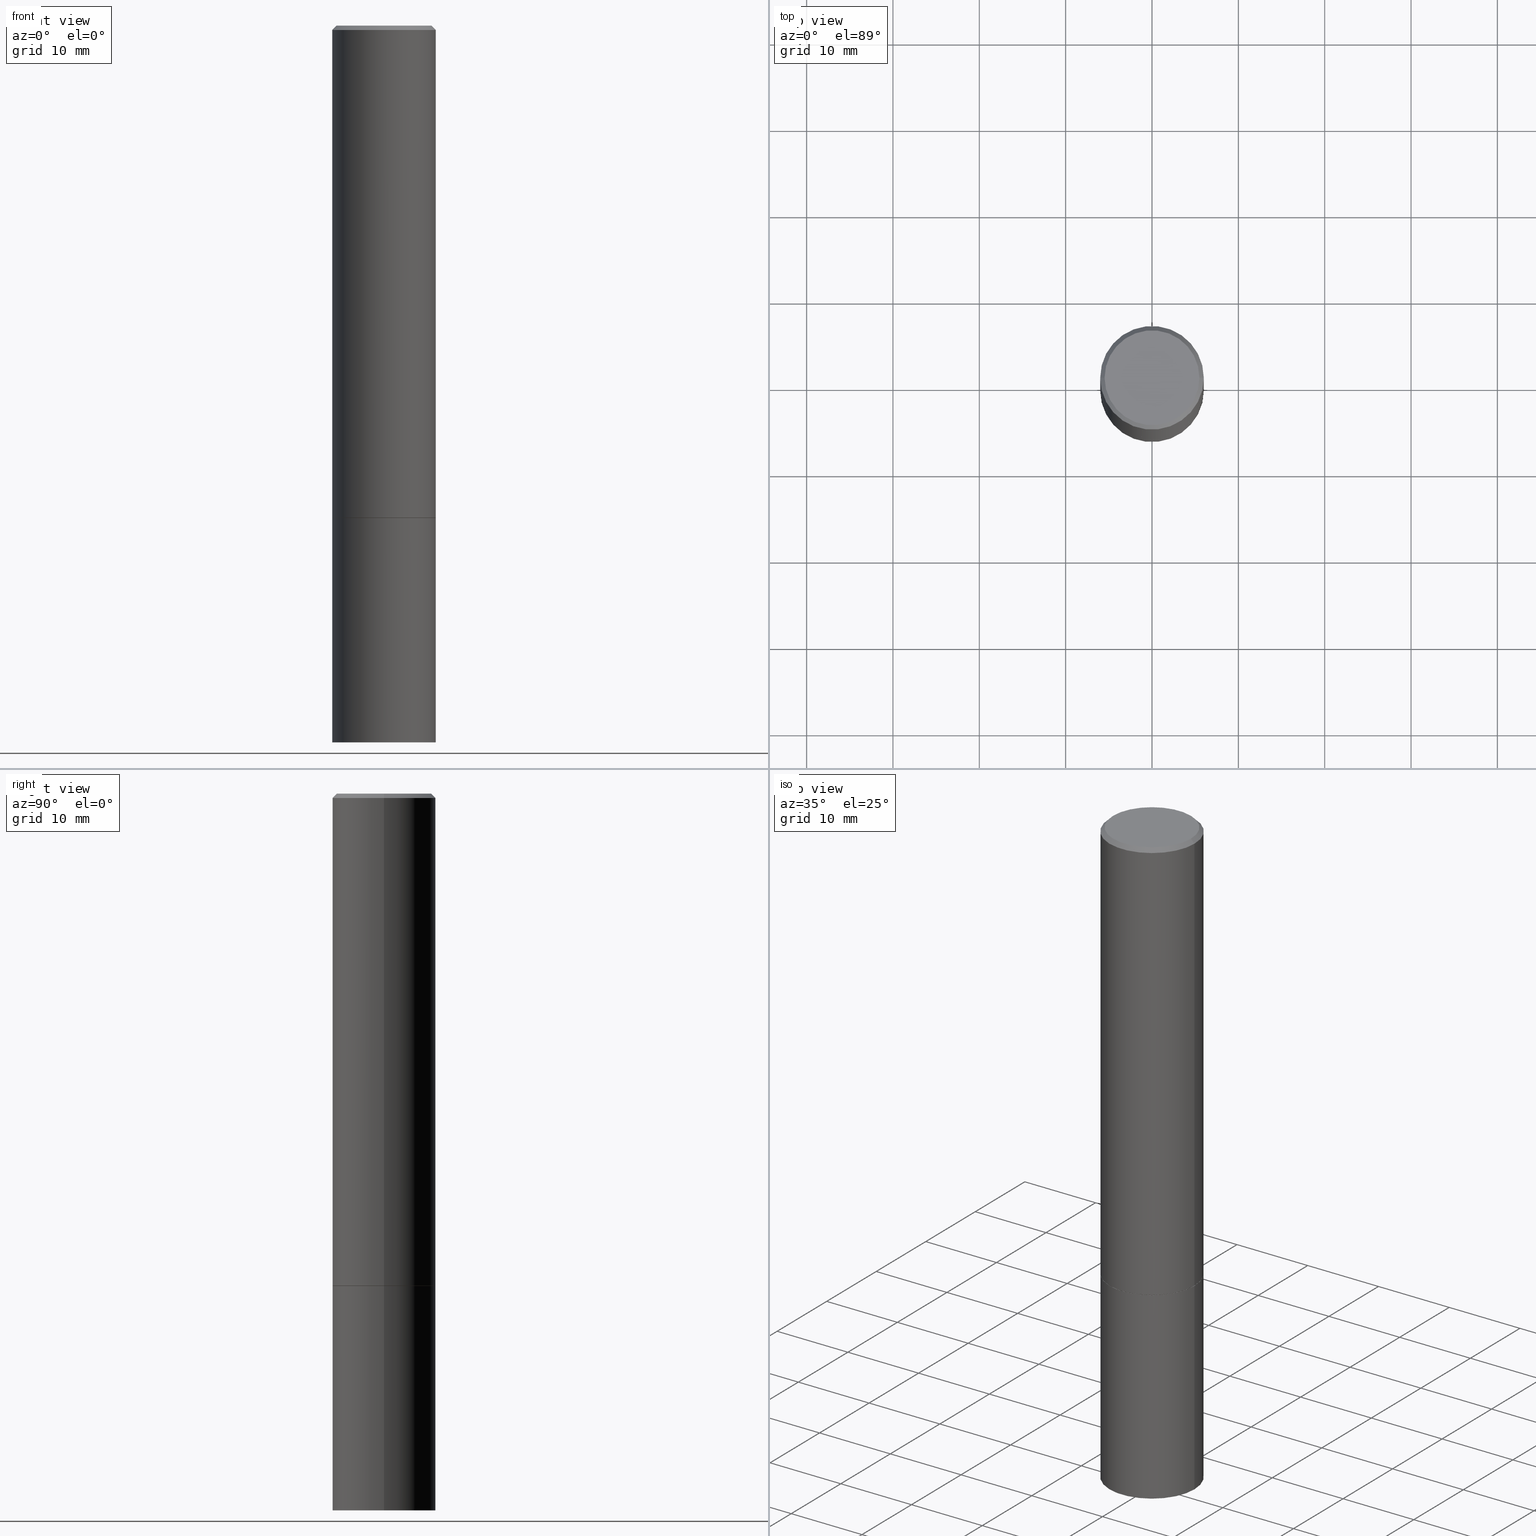
[diagram: canonical four-view strip — front | top / right | iso, engineering-drawing reading convention]
A machine part, canonical four-view strip (front | top / right | iso — engineering-drawing reading convention). The complete STEP part file that produces these views, byte-faithful:
ISO-10303-21;
HEADER;
FILE_DESCRIPTION (( 'STEP AP203' ),
    '1' );
FILE_NAME ('44708.STEP',
    '2024-02-28T07:36:03',
    ( '' ),
    ( '' ),
    'SwSTEP 2.0',
    'SolidWorks 2023',
    '' );
FILE_SCHEMA (( 'CONFIG_CONTROL_DESIGN' ));
ENDSEC;

DATA;
#1 = PLANE ( 'NONE',  #151 ) ;
#2 = ORIENTED_EDGE ( 'NONE', *, *, #78, .F. ) ;
#3 = DIRECTION ( 'NONE',  ( 1.000000000000000000, -6.982962677686264344E-15, 0.000000000000000000 ) ) ;
#4 = ORIENTED_EDGE ( 'NONE', *, *, #291, .T. ) ;
#5 = LINE ( 'NONE', #347, #148 ) ;
#6 = APPLICATION_PROTOCOL_DEFINITION ( 'international standard', 'config_control_design', 1994, #83 ) ;
#7 = DIRECTION ( 'NONE',  ( 1.000000000000000000, -6.982962677686266711E-15, 4.876176775795935793E-29 ) ) ;
#8 = EDGE_CURVE ( 'NONE', #14, #261, #312, .T. ) ;
#9 = EDGE_LOOP ( 'NONE', ( #12, #90, #69, #86 ) ) ;
#10 = AXIS2_PLACEMENT_3D ( 'NONE', #274, #101, #80 ) ;
#11 = CONICAL_SURFACE ( 'NONE', #210, 0.2361999999999997157, 0.7853981633974477239 ) ;
#12 = ORIENTED_EDGE ( 'NONE', *, *, #135, .F. ) ;
#13 = ORIENTED_EDGE ( 'NONE', *, *, #49, .T. ) ;
#14 = VERTEX_POINT ( 'NONE', #233 ) ;
#15 = EDGE_CURVE ( 'NONE', #97, #354, #328, .T. ) ;
#16 = ADVANCED_BREP_SHAPE_REPRESENTATION ( '44708', ( #21, #262, #229 ), #204 ) ;
#17 = AXIS2_PLACEMENT_3D ( 'NONE', #366, #24, #44 ) ;
#18 = VERTEX_POINT ( 'NONE', #98 ) ;
#19 = DIRECTION ( 'NONE',  ( 1.000000000000000000, -6.982962677686266711E-15, 4.876176775795935793E-29 ) ) ;
#20 = APPROVAL_STATUS ( 'not_yet_approved' ) ;
#21 = MANIFOLD_SOLID_BREP ( 'Body-Move/Copy2[1]', #25 ) ;
#22 = DIRECTION ( 'NONE',  ( -2.445468806185136877E-29, 3.491481338843145188E-15, 1.000000000000000000 ) ) ;
#23 = FACE_OUTER_BOUND ( 'NONE', #9, .T. ) ;
#24 = DIRECTION ( 'NONE',  ( -2.445468806185136597E-29, 3.491481338843145583E-15, 1.000000000000000000 ) ) ;
#25 = CLOSED_SHELL ( 'NONE', ( #145, #205, #217, #171 ) ) ;
#26 = CARTESIAN_POINT ( 'NONE',  ( 5.487876547960065873E-29, -7.835233272497903917E-15, -2.244100000000000428 ) ) ;
#27 = DIRECTION ( 'NONE',  ( 1.000000000000000000, -6.982962677686266711E-15, 4.876176775795936353E-29 ) ) ;
#28 = ADVANCED_FACE ( 'NONE', ( #321 ), #68, .T. ) ;
#29 = APPROVAL ( #341, 'UNSPECIFIED' ) ;
#30 = AXIS2_PLACEMENT_3D ( 'NONE', #85, #33, #169 ) ;
#31 = CARTESIAN_POINT ( 'NONE',  ( 0.2361999999999997157, -1.690279253850496996E-15, -0.02000000000000004552 ) ) ;
#32 = ORIENTED_EDGE ( 'NONE', *, *, #191, .F. ) ;
#33 = DIRECTION ( 'NONE',  ( -2.445468806185136597E-29, 3.491481338843145583E-15, 1.000000000000000000 ) ) ;
#34 = CIRCLE ( 'NONE', #45, 0.2361999999999999933 ) ;
#35 = CC_DESIGN_SECURITY_CLASSIFICATION ( #339, ( #123 ) ) ;
#36 = VERTEX_POINT ( 'NONE', #297 ) ;
#37 = ORIENTED_EDGE ( 'NONE', *, *, #49, .F. ) ;
#38 = DIRECTION ( 'NONE',  ( -2.445468806185136597E-29, 3.491481338843145583E-15, 1.000000000000000000 ) ) ;
#39 = ORIENTED_EDGE ( 'NONE', *, *, #191, .T. ) ;
#40 = APPROVAL ( #113, 'UNSPECIFIED' ) ;
#41 = CIRCLE ( 'NONE', #93, 0.2361999999999999933 ) ;
#42 = DIRECTION ( 'NONE',  ( -2.445468806185136877E-29, 3.491481338843145188E-15, 1.000000000000000000 ) ) ;
#43 = DIRECTION ( 'NONE',  ( -2.445468806185136597E-29, 3.491481338843145583E-15, 1.000000000000000000 ) ) ;
#44 = DIRECTION ( 'NONE',  ( 1.000000000000000000, -6.982962677686266711E-15, 4.876176775795936353E-29 ) ) ;
#45 = AXIS2_PLACEMENT_3D ( 'NONE', #77, #50, #187 ) ;
#46 = CARTESIAN_POINT ( 'NONE',  ( 0.000000000000000000, 0.000000000000000000, 0.000000000000000000 ) ) ;
#47 = CIRCLE ( 'NONE', #256, 0.2161999999999996980 ) ;
#48 = DATE_AND_TIME ( #240, #306 ) ;
#49 = EDGE_CURVE ( 'NONE', #296, #294, #242, .T. ) ;
#50 = DIRECTION ( 'NONE',  ( -2.445468806185136597E-29, 3.491481338843145583E-15, 1.000000000000000000 ) ) ;
#51 = CC_DESIGN_DATE_AND_TIME_ASSIGNMENT ( #317, #111, ( #129 ) ) ;
#52 = DIRECTION ( 'NONE',  ( -1.000000000000000000, 6.982962677686265922E-15, -4.876176775795935793E-29 ) ) ;
#53 = AXIS2_PLACEMENT_3D ( 'NONE', #165, #289, #55 ) ;
#54 = CALENDAR_DATE ( 2024, 28, 2 ) ;
#55 = DIRECTION ( 'NONE',  ( -1.000000000000000000, 6.982962677686266711E-15, 0.000000000000000000 ) ) ;
#56 = DATE_AND_TIME ( #315, #166 ) ;
#57 = EDGE_CURVE ( 'NONE', #294, #296, #130, .T. ) ;
#58 = CARTESIAN_POINT ( 'NONE',  ( 0.2361999999999999933, -9.481117575628557435E-15, -2.243100000000000094 ) ) ;
#59 = EDGE_LOOP ( 'NONE', ( #176, #99 ) ) ;
#60 = PERSON_AND_ORGANIZATION_ROLE ( 'creator' ) ;
#61 = AXIS2_PLACEMENT_3D ( 'NONE', #70, #220, #244 ) ;
#62 = EDGE_LOOP ( 'NONE', ( #146, #4, #267, #63 ) ) ;
#63 = ORIENTED_EDGE ( 'NONE', *, *, #352, .F. ) ;
#64 = ORIENTED_EDGE ( 'NONE', *, *, #324, .T. ) ;
#65 = CONICAL_SURFACE ( 'NONE', #276, 0.2351999999999999924, 0.7853981633974141952 ) ;
#66 = CONICAL_SURFACE ( 'NONE', #53, 0.2361999999999997157, 0.7853981633974477239 ) ;
#67 = UNCERTAINTY_MEASURE_WITH_UNIT (LENGTH_MEASURE( 1.000000000000000082E-05 ), #336, 'distance_accuracy_value', 'NONE');
#68 = CYLINDRICAL_SURFACE ( 'NONE', #361, 0.2361999999999998545 ) ;
#69 = ORIENTED_EDGE ( 'NONE', *, *, #364, .T. ) ;
#70 = CARTESIAN_POINT ( 'NONE',  ( 5.485431079153880270E-29, -7.831741791159060910E-15, -2.243100000000000094 ) ) ;
#71 = CALENDAR_DATE ( 2024, 28, 2 ) ;
#72 = AXIS2_PLACEMENT_3D ( 'NONE', #125, #203, #122 ) ;
#73 = DIRECTION ( 'NONE',  ( 1.000000000000000000, -6.982962677686266711E-15, 4.876217060660162401E-29 ) ) ;
#74 = ADVANCED_FACE ( 'NONE', ( #76 ), #189, .F. ) ;
#75 = LINE ( 'NONE', #219, #356 ) ;
#76 = FACE_OUTER_BOUND ( 'NONE', #59, .T. ) ;
#77 = CARTESIAN_POINT ( 'NONE',  ( 5.485431079153880270E-29, -7.831741791159060910E-15, -2.243100000000000094 ) ) ;
#78 = EDGE_CURVE ( 'NONE', #18, #150, #88, .T. ) ;
#79 = CARTESIAN_POINT ( 'NONE',  ( 0.2161999999999996980, -1.586759460484350016E-15, 4.268512490111238857E-18 ) ) ;
#80 = DIRECTION ( 'NONE',  ( 1.000000000000000000, -6.982962677686265922E-15, 4.876176775795935793E-29 ) ) ;
#81 = CARTESIAN_POINT ( 'NONE',  ( -0.2361999999999997157, 1.579546157692631255E-15, -0.02000000000000004552 ) ) ;
#82 = CARTESIAN_POINT ( 'NONE',  ( 1.649375784469550759E-15, 0.2361999999999921662, -2.244100000000000872 ) ) ;
#83 = APPLICATION_CONTEXT ( 'configuration controlled 3d designs of mechanical parts and assemblies' ) ;
#84 = CARTESIAN_POINT ( 'NONE',  ( -1.043851414335219820E-46, 1.490343170380447200E-32, 4.268512490100411279E-18 ) ) ;
#85 = CARTESIAN_POINT ( 'NONE',  ( 5.487876547960065873E-29, -7.835233272497903917E-15, -2.244100000000000428 ) ) ;
#86 = ORIENTED_EDGE ( 'NONE', *, *, #92, .F. ) ;
#87 = DIRECTION ( 'NONE',  ( -1.000000000000000000, 6.982962677686266711E-15, 0.000000000000000000 ) ) ;
#88 = CIRCLE ( 'NONE', #338, 0.2361999999999999933 ) ;
#89 = FACE_OUTER_BOUND ( 'NONE', #62, .T. ) ;
#90 = ORIENTED_EDGE ( 'NONE', *, *, #57, .T. ) ;
#91 = DIRECTION ( 'NONE',  ( -1.000000000000000000, 6.982962677686265922E-15, -4.876176775795935793E-29 ) ) ;
#92 = EDGE_CURVE ( 'NONE', #150, #18, #41, .T. ) ;
#93 = AXIS2_PLACEMENT_3D ( 'NONE', #239, #363, #308 ) ;
#94 = VECTOR ( 'NONE', #156, 39.37007874015748143 ) ;
#95 = CC_DESIGN_PERSON_AND_ORGANIZATION_ASSIGNMENT ( #345, #60, ( #129 ) ) ;
#96 = ORIENTED_EDGE ( 'NONE', *, *, #57, .F. ) ;
#97 = VERTEX_POINT ( 'NONE', #103 ) ;
#98 = CARTESIAN_POINT ( 'NONE',  ( 0.2361999999999999933, -9.484609056967400443E-15, -2.244100000000000428 ) ) ;
#99 = ORIENTED_EDGE ( 'NONE', *, *, #8, .F. ) ;
#100 = DIRECTION ( 'NONE',  ( 1.000000000000000000, -6.982962677686264344E-15, 0.000000000000000000 ) ) ;
#101 = DIRECTION ( 'NONE',  ( -2.438088387897960049E-29, 3.491481338843145188E-15, 1.000000000000000000 ) ) ;
#102 = LINE ( 'NONE', #246, #94 ) ;
#103 = CARTESIAN_POINT ( 'NONE',  ( 0.2361999999999997157, -1.690279253850496996E-15, -0.02000000000000004552 ) ) ;
#104 = APPLICATION_CONTEXT ( 'configuration controlled 3d designs of mechanical parts and assemblies' ) ;
#105 = PERSON ( 'UNSPECIFIED', 'UNSPECIFIED', 'UNSPECIFIED', ('UNSPECIFIED'), ('UNSPECIFIED'), ('UNSPECIFIED') ) ;
#106 = DIRECTION ( 'NONE',  ( -2.445468806185136597E-29, 3.491481338843145583E-15, 1.000000000000000000 ) ) ;
#107 = ADVANCED_FACE ( 'NONE', ( #275 ), #65, .T. ) ;
#108 = AXIS2_PLACEMENT_3D ( 'NONE', #271, #340, #142 ) ;
#109 = LINE ( 'NONE', #158, #172 ) ;
#110 = AXIS2_PLACEMENT_3D ( 'NONE', #288, #144, #3 ) ;
#111 = DATE_TIME_ROLE ( 'creation_date' ) ;
#112 = DIRECTION ( 'NONE',  ( 2.438088387897960049E-29, -3.491481338843145188E-15, -1.000000000000000000 ) ) ;
#113 = APPROVAL_STATUS ( 'not_yet_approved' ) ;
#114 = EDGE_CURVE ( 'NONE', #36, #228, #34, .T. ) ;
#115 = FACE_OUTER_BOUND ( 'NONE', #293, .T. ) ;
#116 = COORDINATED_UNIVERSAL_TIME_OFFSET ( 5, 0, .BEHIND. ) ;
#117 = DIRECTION ( 'NONE',  ( 0.7071067811865471286, -7.319954787623254468E-15, -0.7071067811865479058 ) ) ;
#118 = ORIENTED_EDGE ( 'NONE', *, *, #307, .F. ) ;
#119 = LINE ( 'NONE', #31, #183 ) ;
#120 = EDGE_CURVE ( 'NONE', #224, #319, #47, .T. ) ;
#121 = ORIENTED_EDGE ( 'NONE', *, *, #175, .T. ) ;
#122 = DIRECTION ( 'NONE',  ( 1.000000000000000000, -6.982962677686264344E-15, 0.000000000000000000 ) ) ;
#123 = PRODUCT_DEFINITION_FORMATION_WITH_SPECIFIED_SOURCE ( 'ANY', '', #281, .NOT_KNOWN. ) ;
#124 = ORIENTED_EDGE ( 'NONE', *, *, #260, .T. ) ;
#125 = CARTESIAN_POINT ( 'NONE',  ( 5.487876547960065873E-29, -7.835233272497903917E-15, -2.244100000000000428 ) ) ;
#126 = LOCAL_TIME ( 2, 36, 3.000000000000000000, #116 ) ;
#127 = ORIENTED_EDGE ( 'NONE', *, *, #181, .F. ) ;
#128 = DIRECTION ( 'NONE',  ( -2.445468806185136597E-29, 3.491481338843145583E-15, 1.000000000000000000 ) ) ;
#129 = PRODUCT_DEFINITION ( 'UNKNOWN', '', #123, #322 ) ;
#130 = CIRCLE ( 'NONE', #225, 0.2361999999999999933 ) ;
#131 = VECTOR ( 'NONE', #22, 39.37007874015748143 ) ;
#132 = DIRECTION ( 'NONE',  ( 0.7071067811865232589, -2.468850131082003836E-15, 0.7071067811865715536 ) ) ;
#133 = PERSON_AND_ORGANIZATION ( #105, #295 ) ;
#134 = CARTESIAN_POINT ( 'NONE',  ( -0.2361999999999999933, 1.678301941865356591E-15, -1.161852468318208757E-29 ) ) ;
#135 = EDGE_CURVE ( 'NONE', #294, #150, #184, .T. ) ;
#136 = PERSON_AND_ORGANIZATION ( #105, #295 ) ;
#137 = CYLINDRICAL_SURFACE ( 'NONE', #17, 0.2361999999999999933 ) ;
#138 = CARTESIAN_POINT ( 'NONE',  ( 0.000000000000000000, 0.000000000000000000, 0.000000000000000000 ) ) ;
#139 = LINE ( 'NONE', #222, #270 ) ;
#140 = ORIENTED_EDGE ( 'NONE', *, *, #120, .T. ) ;
#141 = PERSON_AND_ORGANIZATION_ROLE ( 'design_owner' ) ;
#142 = DIRECTION ( 'NONE',  ( 1.000000000000000000, -6.982962677686266711E-15, 0.000000000000000000 ) ) ;
#143 = PERSON_AND_ORGANIZATION ( #105, #295 ) ;
#144 = DIRECTION ( 'NONE',  ( -2.445468806185136597E-29, 3.491481338843145583E-15, 1.000000000000000000 ) ) ;
#145 = ADVANCED_FACE ( 'NONE', ( #216 ), #211, .T. ) ;
#146 = ORIENTED_EDGE ( 'NONE', *, *, #357, .F. ) ;
#147 = ORIENTED_EDGE ( 'NONE', *, *, #324, .F. ) ;
#148 = VECTOR ( 'NONE', #285, 39.37007874015748854 ) ;
#149 = DIRECTION ( 'NONE',  ( 1.000000000000000000, -6.982962677686266711E-15, 0.000000000000000000 ) ) ;
#150 = VERTEX_POINT ( 'NONE', #302 ) ;
#151 = AXIS2_PLACEMENT_3D ( 'NONE', #310, #112, #52 ) ;
#152 = CC_DESIGN_APPROVAL ( #40, ( #129 ) ) ;
#153 = CARTESIAN_POINT ( 'NONE',  ( 7.991058417971171713E-29, -1.140911357093774644E-14, -3.267700000000000049 ) ) ;
#154 = CC_DESIGN_PERSON_AND_ORGANIZATION_ASSIGNMENT ( #133, #335, ( #123 ) ) ;
#155 =( NAMED_UNIT ( * ) PLANE_ANGLE_UNIT ( ) SI_UNIT ( $, .RADIAN. ) );
#156 = DIRECTION ( 'NONE',  ( -2.445468806185136877E-29, 3.491481338843145188E-15, 1.000000000000000000 ) ) ;
#157 = CARTESIAN_POINT ( 'NONE',  ( 0.000000000000000000, 0.000000000000000000, 0.000000000000000000 ) ) ;
#158 = CARTESIAN_POINT ( 'NONE',  ( 0.2351999999999999924, -9.477626094289712851E-15, -2.244100000000000428 ) ) ;
#159 = AXIS2_PLACEMENT_3D ( 'NONE', #138, #257, #7 ) ;
#160 = DIRECTION ( 'NONE',  ( -2.445468806185136597E-29, 3.491481338843145583E-15, 1.000000000000000000 ) ) ;
#161 = APPROVAL_DATE_TIME ( #48, #344 ) ;
#162 = MECHANICAL_CONTEXT ( 'NONE', #104, 'mechanical' ) ;
#163 = DIRECTION ( 'NONE',  ( 0.000000000000000000, 0.000000000000000000, 1.000000000000000000 ) ) ;
#164 = AXIS2_PLACEMENT_3D ( 'NONE', #232, #38, #149 ) ;
#165 = CARTESIAN_POINT ( 'NONE',  ( 4.890937612370284544E-31, -6.982962677686307633E-17, -0.02000000000000004552 ) ) ;
#166 = LOCAL_TIME ( 2, 36, 3.000000000000000000, #168 ) ;
#167 = ORIENTED_EDGE ( 'NONE', *, *, #364, .F. ) ;
#168 = COORDINATED_UNIVERSAL_TIME_OFFSET ( 5, 0, .BEHIND. ) ;
#169 = DIRECTION ( 'NONE',  ( 1.000000000000000000, -6.982962677686264344E-15, 0.000000000000000000 ) ) ;
#170 = DIRECTION ( 'NONE',  ( 2.445468806185136597E-29, -3.491481338843145583E-15, -1.000000000000000000 ) ) ;
#171 = ADVANCED_FACE ( 'NONE', ( #23 ), #137, .T. ) ;
#172 = VECTOR ( 'NONE', #132, 39.37007874015748854 ) ;
#173 = PERSON_AND_ORGANIZATION ( #105, #295 ) ;
#174 = EDGE_LOOP ( 'NONE', ( #180, #206, #323, #39 ) ) ;
#175 = EDGE_CURVE ( 'NONE', #261, #228, #109, .T. ) ;
#176 = ORIENTED_EDGE ( 'NONE', *, *, #260, .F. ) ;
#177 = CC_DESIGN_PERSON_AND_ORGANIZATION_ASSIGNMENT ( #213, #245, ( #123 ) ) ;
#178 = CC_DESIGN_APPROVAL ( #344, ( #339 ) ) ;
#179 = EDGE_LOOP ( 'NONE', ( #230, #358, #121, #350 ) ) ;
#180 = ORIENTED_EDGE ( 'NONE', *, *, #291, .F. ) ;
#181 = EDGE_CURVE ( 'NONE', #228, #36, #218, .T. ) ;
#182 = APPROVAL_ROLE ( '' ) ;
#183 = VECTOR ( 'NONE', #117, 39.37007874015748143 ) ;
#184 = LINE ( 'NONE', #134, #355 ) ;
#185 = LINE ( 'NONE', #190, #131 ) ;
#186 = APPROVAL_DATE_TIME ( #56, #29 ) ;
#187 = DIRECTION ( 'NONE',  ( 1.000000000000000000, -6.982962677686269077E-15, 0.000000000000000000 ) ) ;
#188 = PERSON_AND_ORGANIZATION_ROLE ( 'classification_officer' ) ;
#189 = PLANE ( 'NONE',  #10 ) ;
#190 = CARTESIAN_POINT ( 'NONE',  ( 0.2361999999999999933, -1.649375784469496131E-15, 1.151752954443000088E-29 ) ) ;
#191 = EDGE_CURVE ( 'NONE', #354, #97, #269, .T. ) ;
#192 = DIRECTION ( 'NONE',  ( -1.000000000000000000, 6.982962677686265922E-15, -4.876176775795935793E-29 ) ) ;
#193 = FACE_OUTER_BOUND ( 'NONE', #252, .T. ) ;
#194 = CALENDAR_DATE ( 2024, 28, 2 ) ;
#195 = AXIS2_PLACEMENT_3D ( 'NONE', #153, #334, #337 ) ;
#196 = PLANE ( 'NONE',  #236 ) ;
#197 = CARTESIAN_POINT ( 'NONE',  ( 1.649375784469575806E-15, 0.2361999999999885858, -3.267700000000001381 ) ) ;
#198 = DATE_AND_TIME ( #194, #126 ) ;
#199 = ADVANCED_FACE ( 'NONE', ( #193 ), #1, .F. ) ;
#200 = COORDINATED_UNIVERSAL_TIME_OFFSET ( 5, 0, .BEHIND. ) ;
#201 = ORIENTED_EDGE ( 'NONE', *, *, #78, .T. ) ;
#202 = ORIENTED_EDGE ( 'NONE', *, *, #114, .T. ) ;
#203 = DIRECTION ( 'NONE',  ( -2.445468806185136597E-29, 3.491481338843145583E-15, 1.000000000000000000 ) ) ;
#204 =( GEOMETRIC_REPRESENTATION_CONTEXT ( 3 ) GLOBAL_UNCERTAINTY_ASSIGNED_CONTEXT ( ( #67 ) ) GLOBAL_UNIT_ASSIGNED_CONTEXT ( ( #336, #155, #241 ) ) REPRESENTATION_CONTEXT ( 'NONE', 'WORKASPACE' ) );
#205 = ADVANCED_FACE ( 'NONE', ( #115 ), #223, .T. ) ;
#206 = ORIENTED_EDGE ( 'NONE', *, *, #120, .F. ) ;
#207 = ORIENTED_EDGE ( 'NONE', *, *, #287, .T. ) ;
#208 = COORDINATED_UNIVERSAL_TIME_OFFSET ( 5, 0, .BEHIND. ) ;
#209 = DIRECTION ( 'NONE',  ( 1.000000000000000000, 0.000000000000000000, 0.000000000000000000 ) ) ;
#210 = AXIS2_PLACEMENT_3D ( 'NONE', #342, #170, #87 ) ;
#211 = CYLINDRICAL_SURFACE ( 'NONE', #298, 0.2361999999999999933 ) ;
#212 = ADVANCED_FACE ( 'NONE', ( #89 ), #11, .T. ) ;
#213 = PERSON_AND_ORGANIZATION ( #105, #295 ) ;
#214 = APPLICATION_PROTOCOL_DEFINITION ( 'international standard', 'config_control_design', 1994, #104 ) ;
#215 = LENGTH_MEASURE_WITH_UNIT ( LENGTH_MEASURE( 0.02539999999999999897 ), #277 );
#216 = FACE_OUTER_BOUND ( 'NONE', #353, .T. ) ;
#217 = ADVANCED_FACE ( 'NONE', ( #316 ), #196, .F. ) ;
#218 = CIRCLE ( 'NONE', #61, 0.2361999999999999933 ) ;
#219 = CARTESIAN_POINT ( 'NONE',  ( -0.2361999999999997157, 1.579546157692631255E-15, -0.02000000000000004552 ) ) ;
#220 = DIRECTION ( 'NONE',  ( -2.445468806185136597E-29, 3.491481338843145583E-15, 1.000000000000000000 ) ) ;
#221 = CC_DESIGN_PERSON_AND_ORGANIZATION_ASSIGNMENT ( #255, #141, ( #281 ) ) ;
#222 = CARTESIAN_POINT ( 'NONE',  ( 0.2361999999999998545, -1.649375784469495145E-15, 1.151752954442999387E-29 ) ) ;
#223 = PLANE ( 'NONE',  #264 ) ;
#224 = VERTEX_POINT ( 'NONE', #314 ) ;
#225 = AXIS2_PLACEMENT_3D ( 'NONE', #279, #128, #247 ) ;
#226 = FACE_OUTER_BOUND ( 'NONE', #325, .T. ) ;
#227 = FACE_OUTER_BOUND ( 'NONE', #179, .T. ) ;
#228 = VERTEX_POINT ( 'NONE', #58 ) ;
#229 = AXIS2_PLACEMENT_3D ( 'NONE', #365, #163, #209 ) ;
#230 = ORIENTED_EDGE ( 'NONE', *, *, #287, .F. ) ;
#231 = CC_DESIGN_DATE_AND_TIME_ASSIGNMENT ( #238, #303, ( #339 ) ) ;
#232 = CARTESIAN_POINT ( 'NONE',  ( 4.890937612370284544E-31, -6.982962677686307633E-17, -0.02000000000000004552 ) ) ;
#233 = CARTESIAN_POINT ( 'NONE',  ( -0.2351999999999999924, -6.158738303641924552E-15, -2.244100000000000428 ) ) ;
#234 = CLOSED_SHELL ( 'NONE', ( #107, #278, #212, #235, #28, #249, #74, #199 ) ) ;
#235 = ADVANCED_FACE ( 'NONE', ( #253 ), #66, .T. ) ;
#236 = AXIS2_PLACEMENT_3D ( 'NONE', #82, #254, #192 ) ;
#237 = EDGE_LOOP ( 'NONE', ( #124, #207, #127, #318 ) ) ;
#238 = DATE_AND_TIME ( #71, #329 ) ;
#239 = CARTESIAN_POINT ( 'NONE',  ( 5.487876547960065873E-29, -7.835233272497903917E-15, -2.244100000000000428 ) ) ;
#240 = CALENDAR_DATE ( 2024, 28, 2 ) ;
#241 =( NAMED_UNIT ( * ) SI_UNIT ( $, .STERADIAN. ) SOLID_ANGLE_UNIT ( ) );
#242 = CIRCLE ( 'NONE', #195, 0.2361999999999999933 ) ;
#243 = CIRCLE ( 'NONE', #110, 0.2351999999999999924 ) ;
#244 = DIRECTION ( 'NONE',  ( 1.000000000000000000, -6.982962677686269077E-15, 0.000000000000000000 ) ) ;
#245 = PERSON_AND_ORGANIZATION_ROLE ( 'design_supplier' ) ;
#246 = CARTESIAN_POINT ( 'NONE',  ( -0.2361999999999998545, 1.678301941865355605E-15, -1.161852468318208056E-29 ) ) ;
#247 = DIRECTION ( 'NONE',  ( 1.000000000000000000, -6.982962677686265133E-15, 0.000000000000000000 ) ) ;
#248 = PERSON_AND_ORGANIZATION ( #105, #295 ) ;
#249 = ADVANCED_FACE ( 'NONE', ( #227 ), #290, .T. ) ;
#250 = CIRCLE ( 'NONE', #284, 0.2161999999999996980 ) ;
#251 = CARTESIAN_POINT ( 'NONE',  ( 0.2361999999999999933, -1.305848935540724297E-14, -3.267700000000000049 ) ) ;
#252 = EDGE_LOOP ( 'NONE', ( #140, #286 ) ) ;
#253 = FACE_OUTER_BOUND ( 'NONE', #174, .T. ) ;
#254 = DIRECTION ( 'NONE',  ( 2.438088387897960049E-29, -3.491481338843145188E-15, -1.000000000000000000 ) ) ;
#255 = PERSON_AND_ORGANIZATION ( #105, #295 ) ;
#256 = AXIS2_PLACEMENT_3D ( 'NONE', #280, #43, #73 ) ;
#257 = DIRECTION ( 'NONE',  ( -2.445468806185136597E-29, 3.491481338843145583E-15, 1.000000000000000000 ) ) ;
#258 = CC_DESIGN_APPROVAL ( #29, ( #123 ) ) ;
#259 = APPROVAL_ROLE ( '' ) ;
#260 = EDGE_CURVE ( 'NONE', #261, #14, #243, .T. ) ;
#261 = VERTEX_POINT ( 'NONE', #309 ) ;
#262 = MANIFOLD_SOLID_BREP ( 'Body-Move/Copy2[2]', #234 ) ;
#263 = CC_DESIGN_PERSON_AND_ORGANIZATION_ASSIGNMENT ( #136, #188, ( #339 ) ) ;
#264 = AXIS2_PLACEMENT_3D ( 'NONE', #197, #343, #91 ) ;
#265 = ORIENTED_EDGE ( 'NONE', *, *, #181, .T. ) ;
#266 = EDGE_LOOP ( 'NONE', ( #201, #292 ) ) ;
#267 = ORIENTED_EDGE ( 'NONE', *, *, #15, .T. ) ;
#268 = ORIENTED_EDGE ( 'NONE', *, *, #15, .F. ) ;
#269 = CIRCLE ( 'NONE', #108, 0.2361999999999997157 ) ;
#270 = VECTOR ( 'NONE', #42, 39.37007874015748143 ) ;
#271 = CARTESIAN_POINT ( 'NONE',  ( 4.890937612370284544E-31, -6.982962677686307633E-17, -0.02000000000000004552 ) ) ;
#272 = DIMENSIONAL_EXPONENTS ( 1.000000000000000000, 0.000000000000000000, 0.000000000000000000, 0.000000000000000000, 0.000000000000000000, 0.000000000000000000, 0.000000000000000000 ) ;
#273 = DIRECTION ( 'NONE',  ( 1.000000000000000000, -6.982962677686266711E-15, 4.876217060660162401E-29 ) ) ;
#274 = CARTESIAN_POINT ( 'NONE',  ( 5.487876547960065873E-29, -7.835233272497903917E-15, -2.244100000000000428 ) ) ;
#275 = FACE_OUTER_BOUND ( 'NONE', #237, .T. ) ;
#276 = AXIS2_PLACEMENT_3D ( 'NONE', #327, #360, #100 ) ;
#277 =( LENGTH_UNIT ( ) NAMED_UNIT ( * ) SI_UNIT ( $, .METRE. ) );
#278 = ADVANCED_FACE ( 'NONE', ( #226 ), #282, .T. ) ;
#279 = CARTESIAN_POINT ( 'NONE',  ( 7.991058417971171713E-29, -1.140911357093774644E-14, -3.267700000000000049 ) ) ;
#280 = CARTESIAN_POINT ( 'NONE',  ( -1.043851414335219820E-46, 1.490343170380447200E-32, 4.268512490100411279E-18 ) ) ;
#281 = PRODUCT ( '44708', '44708', '', ( #162 ) ) ;
#282 = CYLINDRICAL_SURFACE ( 'NONE', #159, 0.2361999999999998545 ) ;
#283 = APPROVAL_ROLE ( '' ) ;
#284 = AXIS2_PLACEMENT_3D ( 'NONE', #84, #301, #273 ) ;
#285 = DIRECTION ( 'NONE',  ( -0.7071067811865232589, 7.493145998870265808E-15, 0.7071067811865715536 ) ) ;
#286 = ORIENTED_EDGE ( 'NONE', *, *, #357, .T. ) ;
#287 = EDGE_CURVE ( 'NONE', #14, #36, #5, .T. ) ;
#288 = CARTESIAN_POINT ( 'NONE',  ( 5.487876547960065873E-29, -7.835233272497903917E-15, -2.244100000000000428 ) ) ;
#289 = DIRECTION ( 'NONE',  ( 2.445468806185136597E-29, -3.491481338843145583E-15, -1.000000000000000000 ) ) ;
#290 = CONICAL_SURFACE ( 'NONE', #30, 0.2351999999999999924, 0.7853981633974141952 ) ;
#291 = EDGE_CURVE ( 'NONE', #319, #97, #119, .T. ) ;
#292 = ORIENTED_EDGE ( 'NONE', *, *, #92, .T. ) ;
#293 = EDGE_LOOP ( 'NONE', ( #37, #96 ) ) ;
#294 = VERTEX_POINT ( 'NONE', #349 ) ;
#295 = ORGANIZATION ( 'UNSPECIFIED', 'UNSPECIFIED', '' ) ;
#296 = VERTEX_POINT ( 'NONE', #251 ) ;
#297 = CARTESIAN_POINT ( 'NONE',  ( -0.2362000000000000210, -2.272483767102602555E-15, -2.243100000000000094 ) ) ;
#298 = AXIS2_PLACEMENT_3D ( 'NONE', #157, #160, #27 ) ;
#299 = APPROVAL_PERSON_ORGANIZATION ( #143, #40, #259 ) ;
#300 = DIRECTION ( 'NONE',  ( -2.445468806185136877E-29, 3.491481338843145188E-15, 1.000000000000000000 ) ) ;
#301 = DIRECTION ( 'NONE',  ( -2.445468806185136597E-29, 3.491481338843145583E-15, 1.000000000000000000 ) ) ;
#302 = CARTESIAN_POINT ( 'NONE',  ( -0.2361999999999999933, -7.943871479852467996E-15, -2.244100000000000428 ) ) ;
#303 = DATE_TIME_ROLE ( 'classification_date' ) ;
#304 = DIRECTION ( 'NONE',  ( -2.445468806185136597E-29, 3.491481338843145583E-15, 1.000000000000000000 ) ) ;
#305 = COORDINATED_UNIVERSAL_TIME_OFFSET ( 5, 0, .BEHIND. ) ;
#306 = LOCAL_TIME ( 2, 36, 3.000000000000000000, #305 ) ;
#307 = EDGE_CURVE ( 'NONE', #228, #97, #139, .T. ) ;
#308 = DIRECTION ( 'NONE',  ( 1.000000000000000000, -6.982962677686269077E-15, 0.000000000000000000 ) ) ;
#309 = CARTESIAN_POINT ( 'NONE',  ( 0.2351999999999999924, -9.477626094289712851E-15, -2.244100000000000428 ) ) ;
#310 = CARTESIAN_POINT ( 'NONE',  ( 1.509716530915768548E-15, 0.2161999999999996980, -7.527240092128368218E-16 ) ) ;
#311 = APPROVAL_DATE_TIME ( #198, #40 ) ;
#312 = CIRCLE ( 'NONE', #72, 0.2351999999999999924 ) ;
#313 = APPROVAL_PERSON_ORGANIZATION ( #173, #29, #283 ) ;
#314 = CARTESIAN_POINT ( 'NONE',  ( -0.2161999999999996980, 1.544631344304200000E-15, 4.268512490089730842E-18 ) ) ;
#315 = CALENDAR_DATE ( 2024, 28, 2 ) ;
#316 = FACE_OUTER_BOUND ( 'NONE', #266, .T. ) ;
#317 = DATE_AND_TIME ( #54, #346 ) ;
#318 = ORIENTED_EDGE ( 'NONE', *, *, #175, .F. ) ;
#319 = VERTEX_POINT ( 'NONE', #79 ) ;
#320 = ORIENTED_EDGE ( 'NONE', *, *, #307, .T. ) ;
#321 = FACE_OUTER_BOUND ( 'NONE', #351, .T. ) ;
#322 = DESIGN_CONTEXT ( 'detailed design', #83, 'design' ) ;
#323 = ORIENTED_EDGE ( 'NONE', *, *, #352, .T. ) ;
#324 = EDGE_CURVE ( 'NONE', #36, #354, #102, .T. ) ;
#325 = EDGE_LOOP ( 'NONE', ( #265, #64, #268, #118 ) ) ;
#326 = PRODUCT_RELATED_PRODUCT_CATEGORY ( 'detail', '', ( #281 ) ) ;
#327 = CARTESIAN_POINT ( 'NONE',  ( 5.487876547960065873E-29, -7.835233272497903917E-15, -2.244100000000000428 ) ) ;
#328 = CIRCLE ( 'NONE', #164, 0.2361999999999997157 ) ;
#329 = LOCAL_TIME ( 2, 36, 3.000000000000000000, #208 ) ;
#330 = DIRECTION ( 'NONE',  ( -0.7071067811865471286, 2.468850131082252722E-15, -0.7071067811865479058 ) ) ;
#331 = PRODUCT_DEFINITION_SHAPE ( 'NONE', 'NONE',  #129 ) ;
#332 = DIRECTION ( 'NONE',  ( 1.000000000000000000, -6.982962677686269077E-15, 0.000000000000000000 ) ) ;
#333 = SECURITY_CLASSIFICATION_LEVEL ( 'unclassified' ) ;
#334 = DIRECTION ( 'NONE',  ( -2.445468806185136597E-29, 3.491481338843145583E-15, 1.000000000000000000 ) ) ;
#335 = PERSON_AND_ORGANIZATION_ROLE ( 'creator' ) ;
#336 =( CONVERSION_BASED_UNIT ( 'INCH', #215 ) LENGTH_UNIT ( ) NAMED_UNIT ( #272 ) );
#337 = DIRECTION ( 'NONE',  ( 1.000000000000000000, -6.982962677686265133E-15, 0.000000000000000000 ) ) ;
#338 = AXIS2_PLACEMENT_3D ( 'NONE', #26, #304, #332 ) ;
#339 = SECURITY_CLASSIFICATION ( '', '', #333 ) ;
#340 = DIRECTION ( 'NONE',  ( -2.445468806185136597E-29, 3.491481338843145583E-15, 1.000000000000000000 ) ) ;
#341 = APPROVAL_STATUS ( 'not_yet_approved' ) ;
#342 = CARTESIAN_POINT ( 'NONE',  ( 4.890937612370284544E-31, -6.982962677686307633E-17, -0.02000000000000004552 ) ) ;
#343 = DIRECTION ( 'NONE',  ( 2.438088387897960049E-29, -3.491481338843145188E-15, -1.000000000000000000 ) ) ;
#344 = APPROVAL ( #20, 'UNSPECIFIED' ) ;
#345 = PERSON_AND_ORGANIZATION ( #105, #295 ) ;
#346 = LOCAL_TIME ( 2, 36, 3.000000000000000000, #200 ) ;
#347 = CARTESIAN_POINT ( 'NONE',  ( -0.2351999999999999924, -6.164036757990147743E-15, -2.244100000000000428 ) ) ;
#348 = ORIENTED_EDGE ( 'NONE', *, *, #135, .T. ) ;
#349 = CARTESIAN_POINT ( 'NONE',  ( -0.2361999999999999933, -7.943871479852467996E-15, -3.267700000000000049 ) ) ;
#350 = ORIENTED_EDGE ( 'NONE', *, *, #114, .F. ) ;
#351 = EDGE_LOOP ( 'NONE', ( #147, #202, #320, #32 ) ) ;
#352 = EDGE_CURVE ( 'NONE', #224, #354, #75, .T. ) ;
#353 = EDGE_LOOP ( 'NONE', ( #13, #348, #2, #167 ) ) ;
#354 = VERTEX_POINT ( 'NONE', #81 ) ;
#355 = VECTOR ( 'NONE', #300, 39.37007874015748143 ) ;
#356 = VECTOR ( 'NONE', #330, 39.37007874015748143 ) ;
#357 = EDGE_CURVE ( 'NONE', #319, #224, #250, .T. ) ;
#358 = ORIENTED_EDGE ( 'NONE', *, *, #8, .T. ) ;
#359 = SHAPE_DEFINITION_REPRESENTATION ( #331, #16 ) ;
#360 = DIRECTION ( 'NONE',  ( -2.445468806185136597E-29, 3.491481338843145583E-15, 1.000000000000000000 ) ) ;
#361 = AXIS2_PLACEMENT_3D ( 'NONE', #46, #106, #19 ) ;
#362 = APPROVAL_PERSON_ORGANIZATION ( #248, #344, #182 ) ;
#363 = DIRECTION ( 'NONE',  ( -2.445468806185136597E-29, 3.491481338843145583E-15, 1.000000000000000000 ) ) ;
#364 = EDGE_CURVE ( 'NONE', #296, #18, #185, .T. ) ;
#365 = CARTESIAN_POINT ( 'NONE',  ( 0.000000000000000000, 0.000000000000000000, 0.000000000000000000 ) ) ;
#366 = CARTESIAN_POINT ( 'NONE',  ( 0.000000000000000000, 0.000000000000000000, 0.000000000000000000 ) ) ;
ENDSEC;
END-ISO-10303-21;
